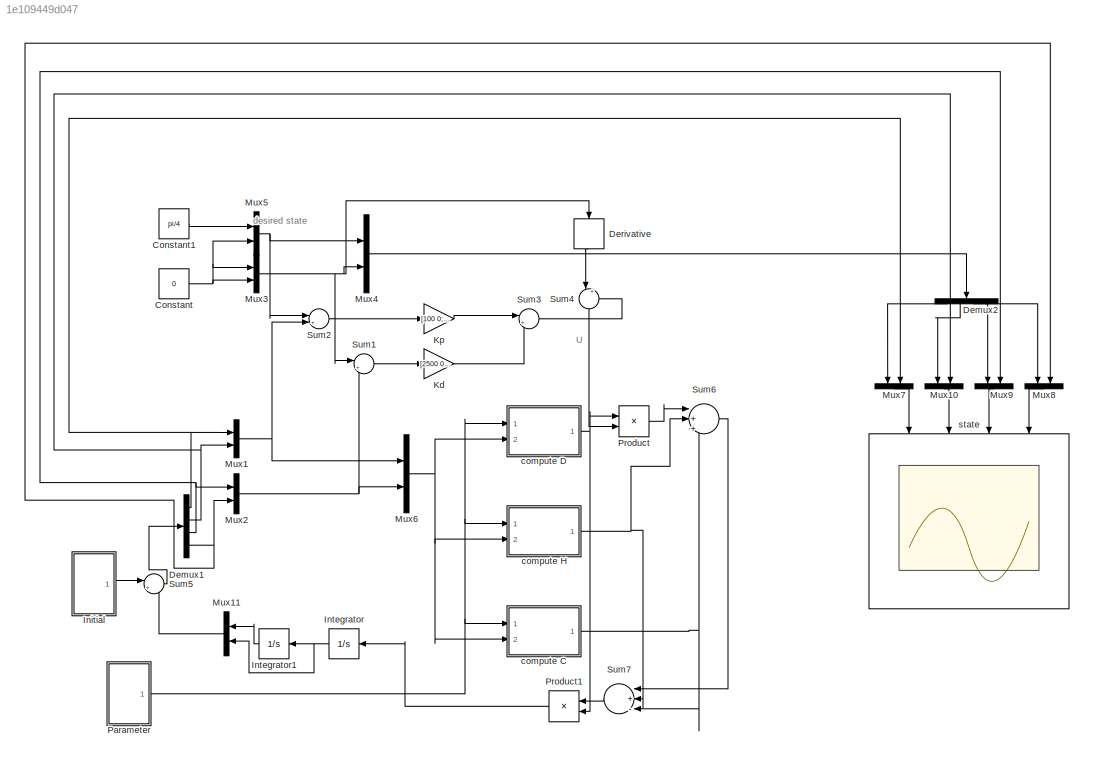
MODEL slx_1e109449d047
KIND model
CONFIG AbsTol = auto
CONFIG FixedStep = auto
CONFIG MaxStep = auto
CONFIG MinStep = auto
CONFIG RelTol = 1e-3
CONFIG SampleTimeConstraint = Unconstrained
CONFIG Solver = ode45
CONFIG SolverMode = Auto
CONFIG SolverName = ode45
CONFIG StartTime = 0.0
CONFIG StopTime = 10
BLOCK [Constant] Constant
  Value = 0
BLOCK [Constant] Constant1
  Value = pi/4
BLOCK [Demux] Demux1
  DisplayOption = bar
  Ports = [1, 4]
BLOCK [Demux] Demux2
  DisplayOption = bar
  Ports = [1, 4]
BLOCK [Derivative] Derivative
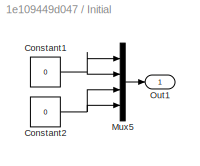
BLOCK [SubSystem] Initial
  Ports = [0, 1]
  RequestExecContextInheritance = off
BLOCK [Constant] Initial/Constant1
  Value = 0
BLOCK [Constant] Initial/Constant2
  Value = 0
BLOCK [Mux] Initial/Mux5
  DisplayOption = bar
  Ports = [4, 1]
BLOCK [Outport] Initial/Out1
  IconDisplay = Port number
BLOCK [Integrator] Integrator
  Ports = [1, 1]
BLOCK [Integrator] Integrator1
  Ports = [1, 1]
BLOCK [Gain] Kd
  Gain = [2500 0; 0 2500]
  Multiplication = Matrix(K*u)
  OutDataTypeStr = Inherit: Inherit via internal rule
  ParamDataTypeStr = Inherit: Inherit via internal rule
  SaturateOnIntegerOverflow = off
BLOCK [Gain] Kp
  Gain = [100 0; 0 100]
  Multiplication = Matrix(K*u)
  OutDataTypeStr = Inherit: Inherit via internal rule
  ParamDataTypeStr = Inherit: Inherit via internal rule
  SaturateOnIntegerOverflow = off
BLOCK [Mux] Mux1
  DisplayOption = bar
  Inputs = 2
  Ports = [2, 1]
BLOCK [Mux] Mux10
  DisplayOption = bar
  Inputs = 2
  Ports = [2, 1]
BLOCK [Mux] Mux11
  DisplayOption = bar
  Inputs = 2
  Ports = [2, 1]
BLOCK [Mux] Mux2
  DisplayOption = bar
  Inputs = 2
  Ports = [2, 1]
BLOCK [Mux] Mux3
  DisplayOption = bar
  Inputs = 2
  Ports = [2, 1]
BLOCK [Mux] Mux4
  DisplayOption = bar
  Inputs = 2
  Ports = [2, 1]
BLOCK [Mux] Mux5
  DisplayOption = bar
  Inputs = 2
  Ports = [2, 1]
BLOCK [Mux] Mux6
  DisplayOption = bar
  Inputs = 2
  Ports = [2, 1]
BLOCK [Mux] Mux7
  DisplayOption = bar
  Inputs = 2
  Ports = [2, 1]
BLOCK [Mux] Mux8
  DisplayOption = bar
  Inputs = 2
  Ports = [2, 1]
BLOCK [Mux] Mux9
  DisplayOption = bar
  Inputs = 2
  Ports = [2, 1]
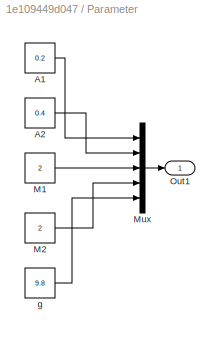
BLOCK [SubSystem] Parameter
  Ports = [0, 1]
  RequestExecContextInheritance = off
BLOCK [Constant] Parameter/A1
  Value = 0.2
BLOCK [Constant] Parameter/A2
  Value = 0.4
BLOCK [Constant] Parameter/M1
  Value = 2
BLOCK [Constant] Parameter/M2
  Value = 2
BLOCK [Mux] Parameter/Mux
  DisplayOption = bar
  Inputs = 5
  Ports = [5, 1]
BLOCK [Outport] Parameter/Out1
  IconDisplay = Port number
BLOCK [Constant] Parameter/g
  Value = 9.8
BLOCK [Product] Product
  InputSameDT = off
  Inputs = **
  Multiplication = Matrix(*)
  OutDataTypeStr = Inherit: Inherit via internal rule
  Ports = [2, 1]
  RndMeth = Floor
  SaturateOnIntegerOverflow = off
BLOCK [Product] Product1
  InputSameDT = off
  Inputs = */
  Multiplication = Matrix(*)
  OutDataTypeStr = Inherit: Inherit via internal rule
  Ports = [2, 1]
  RndMeth = Floor
  SaturateOnIntegerOverflow = off
BLOCK [Sum] Sum1
  IconShape = round
  InputSameDT = off
  Inputs = |+-
  OutDataTypeStr = Inherit: Inherit via internal rule
  Ports = [2, 1]
  SaturateOnIntegerOverflow = off
BLOCK [Sum] Sum2
  IconShape = round
  InputSameDT = off
  Inputs = |+-
  OutDataTypeStr = Inherit: Inherit via internal rule
  Ports = [2, 1]
  SaturateOnIntegerOverflow = off
BLOCK [Sum] Sum3
  IconShape = round
  InputSameDT = off
  Inputs = |++
  OutDataTypeStr = Inherit: Inherit via internal rule
  Ports = [2, 1]
  SaturateOnIntegerOverflow = off
BLOCK [Sum] Sum4
  IconShape = round
  InputSameDT = off
  Inputs = |+-
  OutDataTypeStr = Inherit: Inherit via internal rule
  Ports = [2, 1]
  SaturateOnIntegerOverflow = off
BLOCK [Sum] Sum5
  IconShape = round
  InputSameDT = off
  Inputs = |++
  OutDataTypeStr = Inherit: Inherit via internal rule
  Ports = [2, 1]
  SaturateOnIntegerOverflow = off
BLOCK [Sum] Sum6
  IconShape = round
  InputSameDT = off
  Inputs = |+++
  OutDataTypeStr = Inherit: Inherit via internal rule
  Ports = [3, 1]
  SaturateOnIntegerOverflow = off
BLOCK [Sum] Sum7
  IconShape = round
  InputSameDT = off
  Inputs = |+--
  OutDataTypeStr = Inherit: Inherit via internal rule
  Ports = [3, 1]
  SaturateOnIntegerOverflow = off
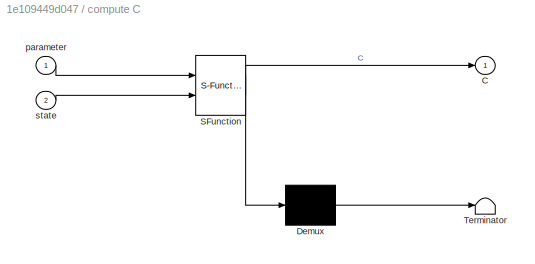
BLOCK [SubSystem] compute C
  ErrorFcn = Stateflow.Translate.translate
  PermitHierarchicalResolution = ExplicitOnly
  Ports = [2, 1]
  RequestExecContextInheritance = off
  SFBlockType = MATLAB Function
  TreatAsAtomicUnit = on
BLOCK [Demux] compute C/ Demux 
  Outputs = 1
  Ports = [1, 1]
BLOCK [S-Function] compute C/ SFunction 
  EnableBusSupport = on
  FunctionName = sf_sfun
  PortCounts = [2 2]
  Ports = [2, 2]
  Tag = Stateflow S-Function computed_torque_control 3
BLOCK [Terminator] compute C/ Terminator 
BLOCK [Outport] compute C/C
  IconDisplay = Port number
BLOCK [Inport] compute C/parameter
  IconDisplay = Port number
BLOCK [Inport] compute C/state
  IconDisplay = Port number
  Port = 2
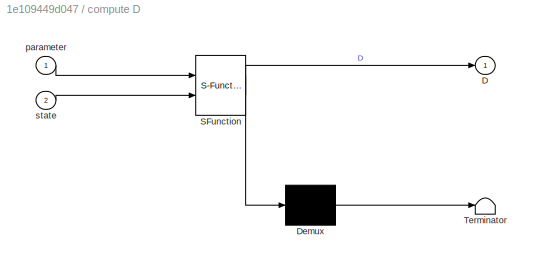
BLOCK [SubSystem] compute D
  ErrorFcn = Stateflow.Translate.translate
  PermitHierarchicalResolution = ExplicitOnly
  Ports = [2, 1]
  RequestExecContextInheritance = off
  SFBlockType = MATLAB Function
  TreatAsAtomicUnit = on
BLOCK [Demux] compute D/ Demux 
  Outputs = 1
  Ports = [1, 1]
BLOCK [S-Function] compute D/ SFunction 
  EnableBusSupport = on
  FunctionName = sf_sfun
  PortCounts = [2 2]
  Ports = [2, 2]
  Tag = Stateflow S-Function computed_torque_control 2
BLOCK [Terminator] compute D/ Terminator 
BLOCK [Outport] compute D/D
  IconDisplay = Port number
BLOCK [Inport] compute D/parameter
  IconDisplay = Port number
BLOCK [Inport] compute D/state
  IconDisplay = Port number
  Port = 2
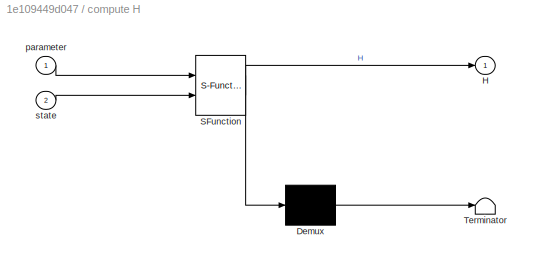
BLOCK [SubSystem] compute H
  ErrorFcn = Stateflow.Translate.translate
  PermitHierarchicalResolution = ExplicitOnly
  Ports = [2, 1]
  RequestExecContextInheritance = off
  SFBlockType = MATLAB Function
  TreatAsAtomicUnit = on
BLOCK [Demux] compute H/ Demux 
  Outputs = 1
  Ports = [1, 1]
BLOCK [S-Function] compute H/ SFunction 
  EnableBusSupport = on
  FunctionName = sf_sfun
  PortCounts = [2 2]
  Ports = [2, 2]
  Tag = Stateflow S-Function computed_torque_control 1
BLOCK [Terminator] compute H/ Terminator 
BLOCK [Outport] compute H/H
  IconDisplay = Port number
BLOCK [Inport] compute H/parameter
  IconDisplay = Port number
BLOCK [Inport] compute H/state
  IconDisplay = Port number
  Port = 2
BLOCK [Scope] state 
  Floating = off
  NumInputPorts = 4
  Ports = [4]
  YMax = 5~5~5~5
  YMin = -5~-5~-5~-5
ANNOTATION (root): U
ANNOTATION (root): desired state
LINE Constant1:1 -> Mux5:1
NET Constant:1 -> Mux3:1, Mux3:2, Mux5:2
NET Demux1:1 -> Mux1:1, Mux7:2
NET Demux1:2 -> Mux10:2, Mux1:2
NET Demux1:3 -> Mux2:1, Mux9:2
NET Demux1:4 -> Mux2:2, Mux8:2
LINE Demux2:1 -> Mux7:1
LINE Demux2:2 -> Mux10:1
LINE Demux2:3 -> Mux9:1
LINE Demux2:4 -> Mux8:1
LINE Derivative:1 -> Sum4:1
NET Initial/Constant1:1 -> Initial/Mux5:1, Initial/Mux5:2
NET Initial/Constant2:1 -> Initial/Mux5:3, Initial/Mux5:4
LINE Initial/Mux5:1 -> Initial/Out1:1
LINE Initial:1 -> Sum5:1
LINE Integrator1:1 -> Mux11:1
NET Integrator:1 -> Integrator1:1, Mux11:2
LINE Kd:1 -> Sum3:2
LINE Kp:1 -> Sum3:1
LINE Mux10:1 -> state :2
LINE Mux11:1 -> Sum5:2
NET Mux1:1 -> Mux6:1, Sum2:2
NET Mux2:1 -> Mux6:2, Sum1:2
NET Mux3:1 -> Derivative:1, Mux4:2, Sum1:1
LINE Mux4:1 -> Demux2:1
NET Mux5:1 -> Mux4:1, Sum2:1
NET Mux6:1 -> compute C:2, compute D:2, compute H:2
LINE Mux7:1 -> state :1
LINE Mux8:1 -> state :4
LINE Mux9:1 -> state :3
LINE Parameter/A1:1 -> Parameter/Mux:1
LINE Parameter/A2:1 -> Parameter/Mux:2
LINE Parameter/M1:1 -> Parameter/Mux:3
LINE Parameter/M2:1 -> Parameter/Mux:4
LINE Parameter/Mux:1 -> Parameter/Out1:1
LINE Parameter/g:1 -> Parameter/Mux:5
NET Parameter:1 -> compute C:1, compute D:1, compute H:1
LINE Product1:1 -> Integrator:1
LINE Product:1 -> Sum6:1
LINE Sum1:1 -> Kd:1
LINE Sum2:1 -> Kp:1
LINE Sum3:1 -> Sum4:2
LINE Sum4:1 -> Product:2
LINE Sum5:1 -> Demux1:1
LINE Sum6:1 -> Sum7:1
LINE Sum7:1 -> Product1:1
NET compute C:1 -> Sum6:3, Sum7:3
NET compute D:1 -> Product1:2, Product:1
NET compute H:1 -> Sum6:2, Sum7:2
note: NET lines group one-source signal fan-out (src -> all destinations, sorted); 1:1 wires keep LINE
CHART compute H states=1 transitions=1
  STATE_LABEL 'eML_blk_kernel()'
  STATE_LABEL 'SCRIPT:\nfunction H = H(parameter,state)\na1 = parameter(1);\na2 = parameter(2);\nm1 = parameter(3);\nm2 = parameter(4);\ng = parameter(5);\n\nif isempty(state)\n    th1 = 0;\n    th2 = 0;\n    thd1 = 0;\n    thd2 = 0;\nelse\n    th1 = state(1);\n    th2 = state(2);\n    thd1 = state(3);\n    thd2 = state(4);\nend\nH = [ -(a1*a2*m2*thd2*sin(th2)*(2*thd1 + thd2))/2;\n                (a1*a2*m2*thd1^2*sin(th2))/2];'
CHART compute D states=1 transitions=1
  STATE_LABEL 'eML_blk_kernel()'
  STATE_LABEL 'SCRIPT:\nfunction D = D(parameter,state)\na1 = parameter(1);\na2 = parameter(2);\nm1 = parameter(3);\nm2 = parameter(4);\ng = parameter(5);\n\nif isempty(state)\n    th1 = 0;\n    th2 = 0;\n    thd1 = 0;\n    thd2 = 0;\nelse\n    th1 = state(1);\n    th2 = state(2);\n    thd1 = state(3);\n    thd2 = state(4);\nend\n\nD = [ (a1^2*m1)/3 + a1^2*m2 + (a2^2*m2)/3 + a1*a2*m2*cos(th2), (a2*m2*(2*a2 + 3*a1*cos(th2)))/6;\n    ...<+68ch>'
CHART compute C states=1 transitions=1
  STATE_LABEL 'eML_blk_kernel()'
  STATE_LABEL 'SCRIPT:\nfunction C = C(parameter,state)\na1 = parameter(1);\na2 = parameter(2);\nm1 = parameter(3);\nm2 = parameter(4);\ng = parameter(5);\nif isempty(state)\n    th1 = 0;\n    th2 = 0;\n    thd1 = 0;\n    thd2 = 0;\nelse\n    th1 = state(1);\n    th2 = state(2);\n    thd1 = state(3);\n    thd2 = state(4);\nend\nC = [(g*(a1*m1*cos(th1) + 2*a1*m2*cos(th1) + a2*m2*cos(th1 + th2)))/2;\n                                ...<+38ch>'
